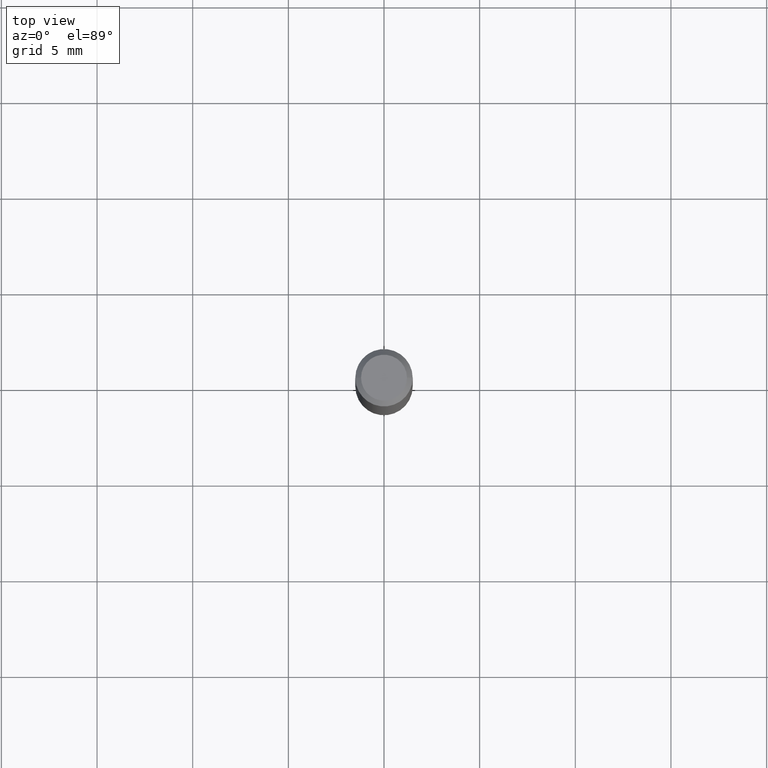
[diagram: clean part render]
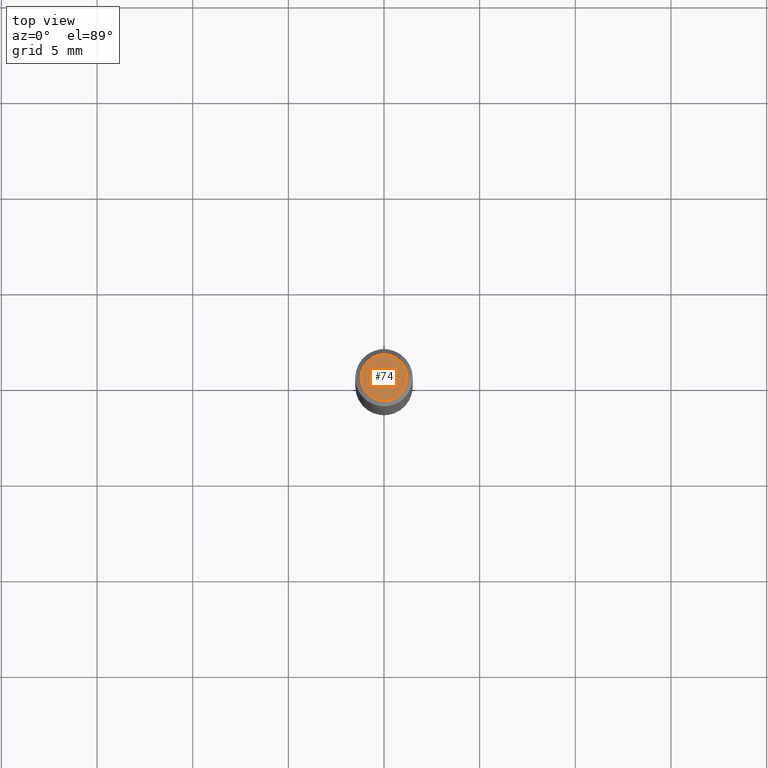
[diagram: same view with one face highlighted and labeled with its STEP entity id]
A machine part, top view. The second image highlights one B-rep face of the part: STEP entity #74.
In plain terms, the highlighted planar face has unit normal (0, -0, -1).
Its self-contained STEP definition (entity closure, byte-faithful):
#20 = PLANE ( 'NONE',  #356 ) ;
#22 = CARTESIAN_POINT ( 'NONE',  ( 4.132873053354867254E-48, -5.900647395337818946E-34, -1.690012582823346072E-19 ) ) ;
#31 = ORIENTED_EDGE ( 'NONE', *, *, #217, .T. ) ;
#42 = EDGE_LOOP ( 'NONE', ( #47, #31 ) ) ;
#47 = ORIENTED_EDGE ( 'NONE', *, *, #220, .T. ) ;
#50 = AXIS2_PLACEMENT_3D ( 'NONE', #470, #179, #326 ) ;
#58 = CARTESIAN_POINT ( 'NONE',  ( 8.265746106709734507E-48, -1.180129479067563789E-33, -3.380025165646692144E-19 ) ) ;
#68 = DIRECTION ( 'NONE',  ( 2.438088387897960049E-29, -3.491481338843145188E-15, -1.000000000000000000 ) ) ;
#74 = ADVANCED_FACE ( 'NONE', ( #87 ), #20, .F. ) ;
#82 = VERTEX_POINT ( 'NONE', #99 ) ;
#87 = FACE_OUTER_BOUND ( 'NONE', #42, .T. ) ;
#99 = CARTESIAN_POINT ( 'NONE',  ( 0.04724000000000000421, -3.852183633974369345E-16, -3.380025165621689721E-19 ) ) ;
#114 = AXIS2_PLACEMENT_3D ( 'NONE', #58, #397, #331 ) ;
#145 = DIRECTION ( 'NONE',  ( -1.000000000000000000, 6.982962677686265922E-15, -4.876176775795935793E-29 ) ) ;
#179 = DIRECTION ( 'NONE',  ( -2.445468806185136597E-29, 3.491481338843145583E-15, 1.000000000000000000 ) ) ;
#217 = EDGE_CURVE ( 'NONE', #82, #314, #267, .T. ) ;
#220 = EDGE_CURVE ( 'NONE', #314, #82, #329, .T. ) ;
#267 = CIRCLE ( 'NONE', #50, 0.04724000000000000421 ) ;
#314 = VERTEX_POINT ( 'NONE', #324 ) ;
#324 = CARTESIAN_POINT ( 'NONE',  ( -0.04724000000000000421, 3.504923541997677355E-16, -3.380025165670481712E-19 ) ) ;
#326 = DIRECTION ( 'NONE',  ( 1.000000000000000000, -6.982962677686266711E-15, 4.876185090822587894E-29 ) ) ;
#329 = CIRCLE ( 'NONE', #114, 0.04724000000000000421 ) ;
#331 = DIRECTION ( 'NONE',  ( 1.000000000000000000, -6.982962677686266711E-15, 4.876185090822587894E-29 ) ) ;
#356 = AXIS2_PLACEMENT_3D ( 'NONE', #22, #68, #145 ) ;
#397 = DIRECTION ( 'NONE',  ( -2.445468806185136597E-29, 3.491481338843145583E-15, 1.000000000000000000 ) ) ;
#470 = CARTESIAN_POINT ( 'NONE',  ( 8.265746106709734507E-48, -1.180129479067563789E-33, -3.380025165646692144E-19 ) ) ;